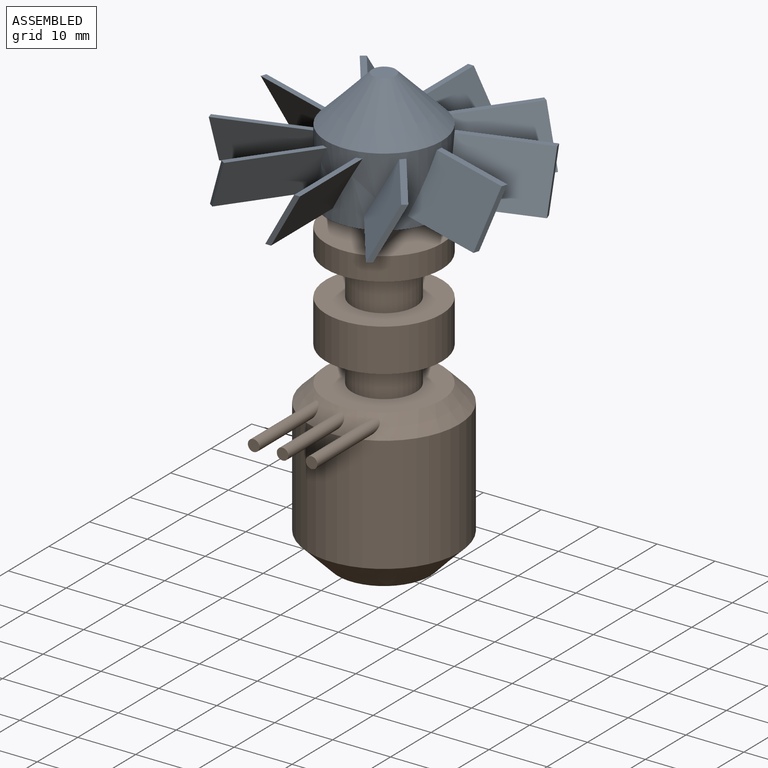
[diagram: assembled view]
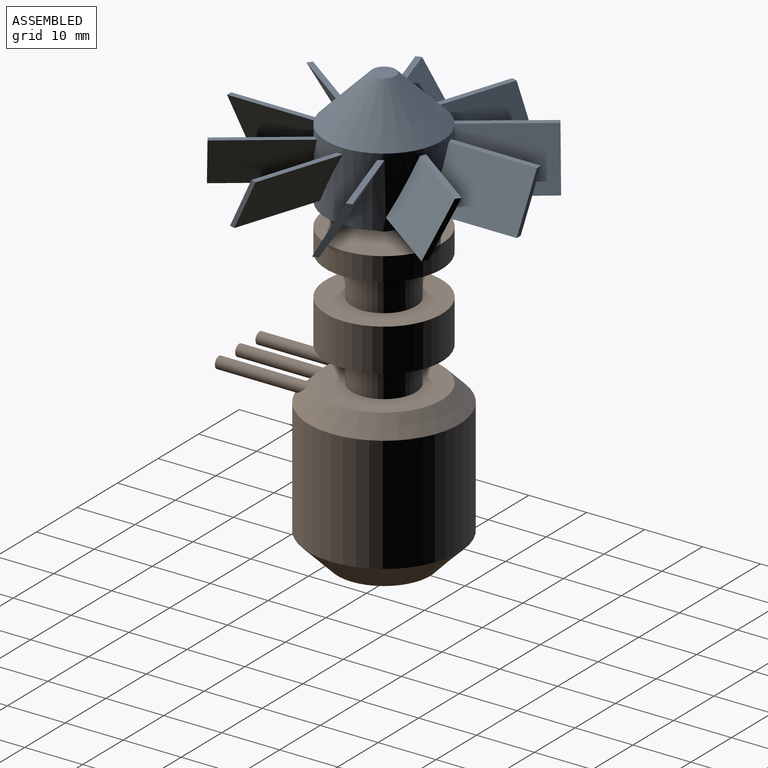
[diagram: assembled view, second angle]
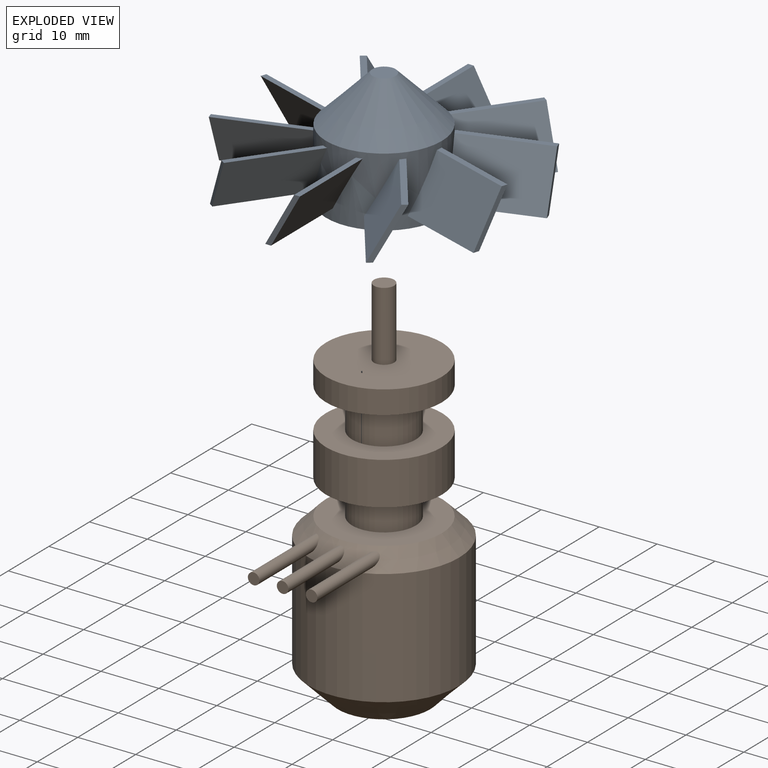
[diagram: exploded view]
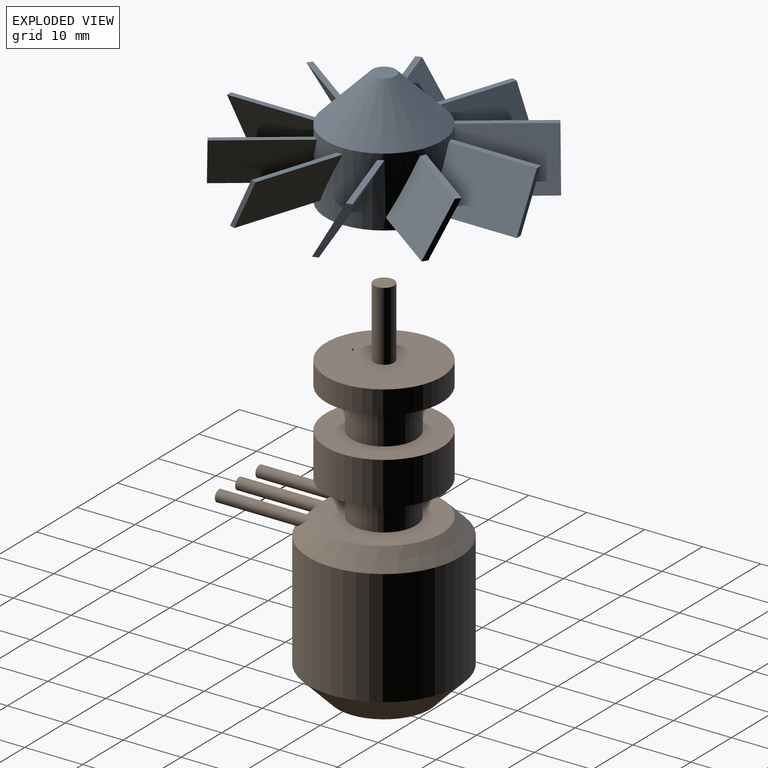
[diagram: exploded view, second angle]
ASSEMBLY  parts=2 mates=2
PART A: 58 faces, bbox 49.4x50x22 mm
  f0: plane 8x8mm, normal (0,0,-1), area 43.2mm2, adj f5,f56
  f1: plane 4x4mm, normal (0,0,1), area 12.6mm2, adj f2
  f2: cone r=10mm half-angle=45deg, axis (0,0,-1), area 426.5mm2, adj f1,f3
  f3: cylinder r=10mm len=20mm, axis (0,0,1), area 663mm2, adj f2,f4,f6,f7,f8,f9,f11,f12
  f4: plane 20x20mm, normal (0,0,-1), area 263.9mm2, adj f3,f5
  f5: cylinder r=4mm len=8mm, axis (0,0,1), area 50.3mm2, adj f0,f4
  f6: plane 15.45x12.98mm, normal (-0.71,0.51,0.49), area 155.7mm2, adj f3,f7,f9,f10
  f7: plane 13.1x9.74mm, normal (0,0,-1), area 15.3mm2, adj f3,f6,f8,f10
  f8: plane 15.24x13.13mm, normal (0.71,-0.51,-0.49), area 155.7mm2, adj f3,f7,f9,f10
  f9: plane 12.89x9.9mm, normal (0,0,1), area 15.3mm2, adj f3,f6,f8,f10
  f10: plane 9x4.85mm, normal (-0.59,-0.81,0), area 9mm2, adj f6,f7,f8,f9
  f11: plane 16x9.53mm, normal (-0.27,0.83,0.49), area 155.7mm2, adj f3,f12,f14,f15
  f12: plane 14.77x5.73mm, normal (0,0,-1), area 15.3mm2, adj f3,f11,f13,f15
  f13: plane 16.25x9.45mm, normal (0.27,-0.83,-0.49), area 155.7mm2, adj f3,f12,f14,f15
  f14: plane 15.01x5.65mm, normal (0,0,1), area 15.3mm2, adj f3,f11,f13,f15
  f15: plane 9x5.71mm, normal (-0.95,-0.31,0), area 9mm2, adj f11,f12,f13,f14
  f16: plane 16.25x9.45mm, normal (0.27,0.83,0.49), area 155.7mm2, adj f3,f17,f19,f20
  f17: plane 15.01x5.65mm, normal (0,0,-1), area 15.3mm2, adj f3,f16,f18,f20
  f18: plane 16x9.53mm, normal (-0.27,-0.83,-0.49), area 155.7mm2, adj f3,f17,f19,f20
  f19: plane 14.77x5.73mm, normal (0,0,1), area 15.3mm2, adj f3,f16,f18,f20
  f20: plane 9x5.71mm, normal (-0.95,0.31,0), area 9mm2, adj f16,f17,f18,f19
  f21: plane 15.24x13.13mm, normal (0.71,0.51,0.49), area 155.7mm2, adj f3,f22,f24,f25
  f22: plane 12.89x9.9mm, normal (0,0,-1), area 15.3mm2, adj f3,f21,f23,f25
  f23: plane 15.45x12.98mm, normal (-0.71,-0.51,-0.49), area 155.7mm2, adj f3,f22,f24,f25
  f24: plane 13.1x9.74mm, normal (0,0,1), area 15.3mm2, adj f3,f21,f23,f25
  f25: plane 9x4.85mm, normal (-0.59,0.81,0), area 9mm2, adj f21,f22,f23,f24
  f26: plane 15.46x9mm, normal (0.87,0,0.49), area 155.7mm2, adj f3,f27,f29,f30
  f27: plane 15.46x1mm, normal (0,0,-1), area 15.3mm2, adj f3,f26,f28,f30
  f28: plane 15.46x9mm, normal (-0.87,0,-0.49), area 155.7mm2, adj f3,f27,f29,f30
  f29: plane 15.46x1mm, normal (0,0,1), area 15.3mm2, adj f3,f26,f28,f30
  f30: plane 9x6mm, normal (0,1,0), area 9mm2, adj f26,f27,f28,f29
  f31: plane 15.45x12.98mm, normal (0.71,-0.51,0.49), area 155.7mm2, adj f3,f32,f34,f35
  f32: plane 13.1x9.74mm, normal (0,0,-1), area 15.3mm2, adj f3,f31,f33,f35
  f33: plane 15.24x13.13mm, normal (-0.71,0.51,-0.49), area 155.7mm2, adj f3,f32,f34,f35
  f34: plane 12.89x9.9mm, normal (0,0,1), area 15.3mm2, adj f3,f31,f33,f35
  f35: plane 9x4.85mm, normal (0.59,0.81,0), area 9mm2, adj f31,f32,f33,f34
  f36: plane 16x9.53mm, normal (0.27,-0.83,0.49), area 155.7mm2, adj f3,f37,f39,f40
  f37: plane 14.77x5.73mm, normal (0,0,-1), area 15.3mm2, adj f3,f36,f38,f40
  f38: plane 16.25x9.45mm, normal (-0.27,0.83,-0.49), area 155.7mm2, adj f3,f37,f39,f40
  f39: plane 15.01x5.65mm, normal (0,0,1), area 15.3mm2, adj f3,f36,f38,f40
  f40: plane 9x5.71mm, normal (0.95,0.31,0), area 9mm2, adj f36,f37,f38,f39
  f41: plane 16.25x9.45mm, normal (-0.27,-0.83,0.49), area 155.7mm2, adj f3,f42,f44,f45
  f42: plane 15.01x5.65mm, normal (0,0,-1), area 15.3mm2, adj f3,f41,f43,f45
  f43: plane 16x9.53mm, normal (0.27,0.83,-0.49), area 155.7mm2, adj f3,f42,f44,f45
  f44: plane 14.77x5.73mm, normal (0,0,1), area 15.3mm2, adj f3,f41,f43,f45
  f45: plane 9x5.71mm, normal (0.95,-0.31,0), area 9mm2, adj f41,f42,f43,f44
  f46: plane 15.24x13.13mm, normal (-0.71,-0.51,0.49), area 155.7mm2, adj f3,f47,f49,f50
  f47: plane 12.89x9.9mm, normal (0,0,-1), area 15.3mm2, adj f3,f46,f48,f50
  f48: plane 15.45x12.98mm, normal (0.71,0.51,-0.49), area 155.7mm2, adj f3,f47,f49,f50
  f49: plane 13.1x9.74mm, normal (0,0,1), area 15.3mm2, adj f3,f46,f48,f50
  f50: plane 9x4.85mm, normal (0.59,-0.81,0), area 9mm2, adj f46,f47,f48,f49
  f51: plane 15.46x9mm, normal (-0.87,0,0.49), area 155.7mm2, adj f3,f52,f54,f55
  f52: plane 15.46x1mm, normal (0,0,-1), area 15.3mm2, adj f3,f51,f53,f55
  f53: plane 15.46x9mm, normal (0.87,0,-0.49), area 155.7mm2, adj f3,f52,f54,f55
  f54: plane 15.46x1mm, normal (0,0,1), area 15.3mm2, adj f3,f51,f53,f55
  f55: plane 9x6mm, normal (0,-1,0), area 9mm2, adj f51,f52,f53,f54
  f56: cylinder r=1.5mm len=10mm, axis (0,0,-1), area 94.2mm2, adj f0,f57
  f57: plane 3x3mm, normal (0,0,-1), area 7.1mm2, adj f56
PART B: 21 faces, bbox 26x38x64.4 mm
  f0: cone r=13mm half-angle=45deg, axis (0,0,-1), area 292.3mm2, adj f9,f10,f13,f15,f17
  f1: plane 20x20mm, normal (0,0,1), area 304.5mm2, adj f2,f19
  f2: cylinder r=10mm len=20mm, axis (0,0,-1), area 251.3mm2, adj f1,f3
  f3: plane 20x20mm, normal (0,0,-1), area 219.1mm2, adj f2,f4
  f4: cylinder r=5.5mm len=11mm, axis (0,0,-1), area 241.9mm2, adj f3,f5
  f5: plane 20x20mm, normal (0,0,1), area 219.1mm2, adj f4,f6
  f6: cylinder r=10mm len=20mm, axis (0,0,-1), area 465.8mm2, adj f5,f7
  f7: plane 20x20mm, normal (0,0,-1), area 219.1mm2, adj f6,f8
  f8: cylinder r=5.5mm len=11mm, axis (0,0,-1), area 207.3mm2, adj f7,f9
  f9: plane 20x20mm, normal (0,0,1), area 219.1mm2, adj f0,f8
  f10: cylinder r=13mm len=26mm, axis (0,0,-1), area 1633.6mm2, adj f0,f12
  f11: plane 16x16mm, normal (0,0,-1), area 201.1mm2, adj f12
  f12: cone r=8mm half-angle=45deg, axis (0,0,1), area 466.5mm2, adj f10,f11
  f13: cylinder r=1mm len=15.8mm, axis (0,1,0), area 91.6mm2, adj f0,f14
  f14: plane 2x2mm, normal (0,-1,0), area 3.1mm2, adj f13
  f15: cylinder r=1mm len=14.41mm, axis (0,1,0), area 84.4mm2, adj f0,f16
  f16: plane 2x2mm, normal (0,-1,0), area 3.1mm2, adj f15
  f17: cylinder r=1mm len=15.8mm, axis (0,1,0), area 91.6mm2, adj f0,f18
  f18: plane 2x2mm, normal (0,-1,0), area 3.1mm2, adj f17
  f19: cylinder r=1.75mm len=12mm, axis (0,0,-1), area 131.9mm2, adj f1,f20
  f20: plane 3.5x3.5mm, normal (0,0,1), area 9.6mm2, adj f19
PLACE A t=(-10.63,3.58,12.11)mm
PLACE B t=(-10.63,3.58,10.11)mm
MATE cylindrical B.f19 <-> A.f56  axis (0,0,-1) through (-10.63,3.58,16.11)mm
MATE planar A.f56 <-> B.f19  axis (0,0,-1) through (-10.63,3.58,22.11)mm
